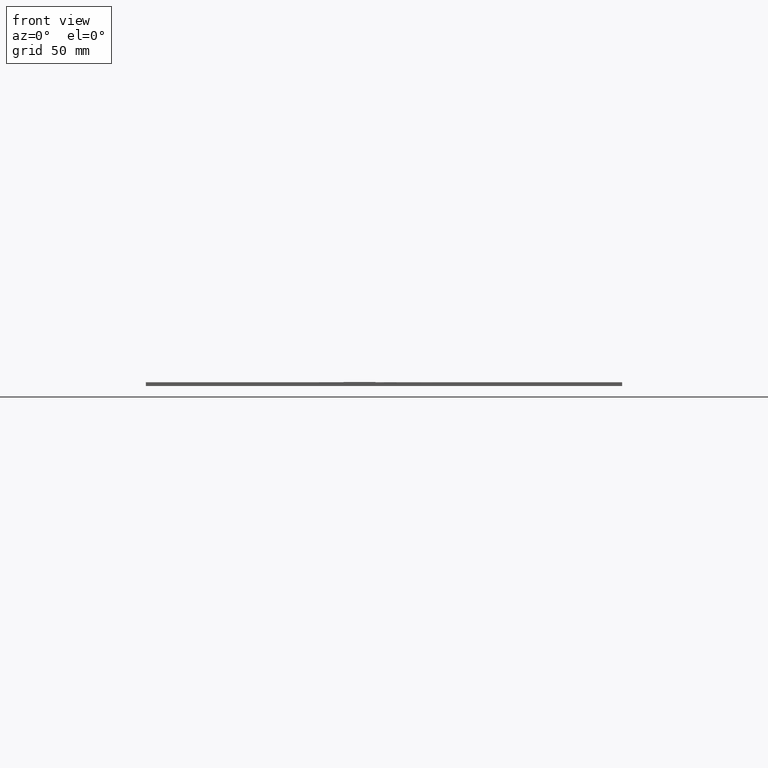
[diagram: clean part render]
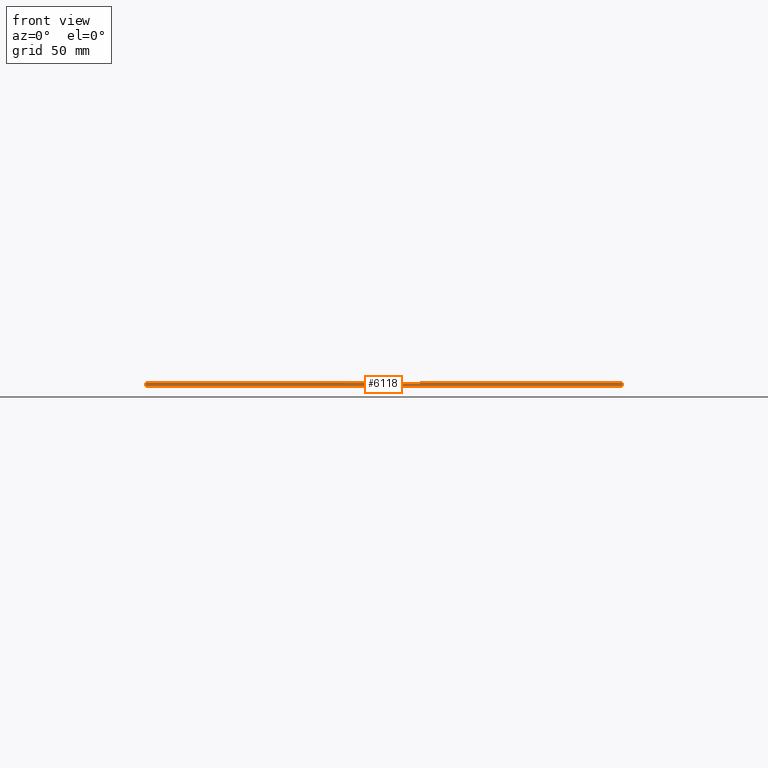
[diagram: same view with one face highlighted and labeled with its STEP entity id]
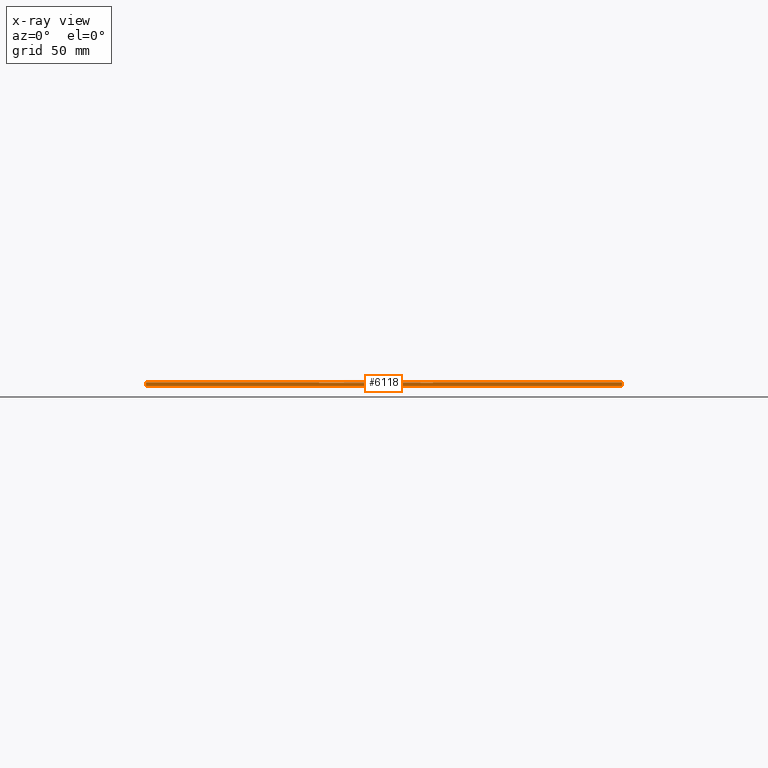
[diagram: x-ray of the same camera — body ghosted, the highlighted face saturated]
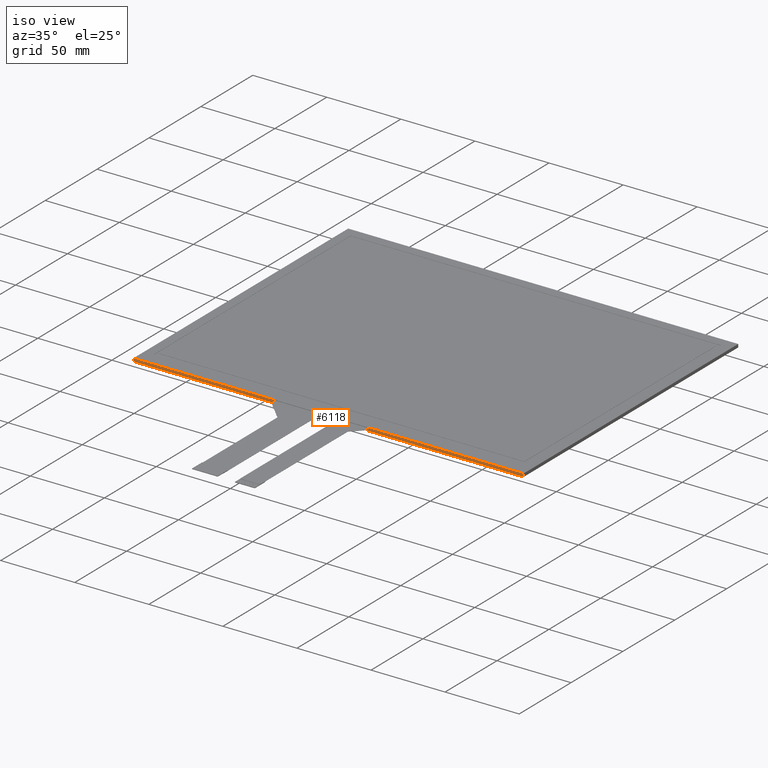
[diagram: same view with one face highlighted and labeled with its STEP entity id]
A machine part, front view. The second image highlights one B-rep face of the part: STEP entity #6118.
The next image is the same camera in x-ray: the body ghosted, the highlighted face saturated — about 1% of this face is hidden behind the body in this view.
A second angle (iso view) of the same face is appended — the face is thin or edge-on in the first view.
In plain terms, the highlighted planar face has unit normal (0, -1, 0).
Its self-contained STEP definition (entity closure, byte-faithful):
#69=FACE_BOUND('',#939,.T.);
#70=FACE_BOUND('',#940,.T.);
#348=PLANE('',#6456);
#642=FACE_OUTER_BOUND('',#938,.T.);
#938=EDGE_LOOP('',(#5789,#5790,#5791,#5792));
#939=EDGE_LOOP('',(#5793,#5794,#5795,#5796));
#940=EDGE_LOOP('',(#5797,#5798,#5799,#5800));
#959=LINE('',#7979,#1799);
#978=LINE('',#8030,#1818);
#1738=LINE('',#9578,#2578);
#1742=LINE('',#9585,#2582);
#1743=LINE('',#9587,#2583);
#1744=LINE('',#9590,#2584);
#1747=LINE('',#9595,#2587);
#1748=LINE('',#9597,#2588);
#1775=LINE('',#9654,#2615);
#1779=LINE('',#9661,#2619);
#1780=LINE('',#9664,#2620);
#1781=LINE('',#9665,#2621);
#1799=VECTOR('',#6495,10.);
#1818=VECTOR('',#6536,10.);
#2578=VECTOR('',#7848,10.);
#2582=VECTOR('',#7856,10.);
#2583=VECTOR('',#7859,10.);
#2584=VECTOR('',#7862,10.);
#2587=VECTOR('',#7867,10.);
#2588=VECTOR('',#7870,10.);
#2615=VECTOR('',#7917,10.);
#2619=VECTOR('',#7923,10.);
#2620=VECTOR('',#7926,10.);
#2621=VECTOR('',#7927,10.);
#2663=VERTEX_POINT('',#7976);
#2664=VERTEX_POINT('',#7978);
#2684=VERTEX_POINT('',#8027);
#2685=VERTEX_POINT('',#8029);
#3197=VERTEX_POINT('',#9577);
#3198=VERTEX_POINT('',#9583);
#3199=VERTEX_POINT('',#9589);
#3200=VERTEX_POINT('',#9593);
#3219=VERTEX_POINT('',#9651);
#3220=VERTEX_POINT('',#9653);
#3222=VERTEX_POINT('',#9659);
#3223=VERTEX_POINT('',#9663);
#3243=EDGE_CURVE('',#2664,#2663,#959,.T.);
#3268=EDGE_CURVE('',#2685,#2684,#978,.T.);
#4042=EDGE_CURVE('',#3197,#2664,#1738,.T.);
#4046=EDGE_CURVE('',#2663,#3198,#1742,.T.);
#4047=EDGE_CURVE('',#3198,#3197,#1743,.T.);
#4048=EDGE_CURVE('',#3199,#2685,#1744,.T.);
#4051=EDGE_CURVE('',#2684,#3200,#1747,.T.);
#4052=EDGE_CURVE('',#3200,#3199,#1748,.T.);
#4079=EDGE_CURVE('',#3219,#3220,#1775,.T.);
#4083=EDGE_CURVE('',#3219,#3222,#1779,.T.);
#4084=EDGE_CURVE('',#3223,#3222,#1780,.T.);
#4085=EDGE_CURVE('',#3220,#3223,#1781,.T.);
#5789=ORIENTED_EDGE('',*,*,#4079,.F.);
#5790=ORIENTED_EDGE('',*,*,#4083,.T.);
#5791=ORIENTED_EDGE('',*,*,#4084,.F.);
#5792=ORIENTED_EDGE('',*,*,#4085,.F.);
#5793=ORIENTED_EDGE('',*,*,#4046,.T.);
#5794=ORIENTED_EDGE('',*,*,#4047,.T.);
#5795=ORIENTED_EDGE('',*,*,#4042,.T.);
#5796=ORIENTED_EDGE('',*,*,#3243,.T.);
#5797=ORIENTED_EDGE('',*,*,#4051,.T.);
#5798=ORIENTED_EDGE('',*,*,#4052,.T.);
#5799=ORIENTED_EDGE('',*,*,#4048,.T.);
#5800=ORIENTED_EDGE('',*,*,#3268,.T.);
#6118=ADVANCED_FACE('',(#642,#69,#70),#348,.T.);
#6456=AXIS2_PLACEMENT_3D('',#9662,#7924,#7925);
#6495=DIRECTION('',(1.,6.74651287276966E-17,0.));
#6536=DIRECTION('',(1.,6.74651287276966E-17,0.));
#7848=DIRECTION('',(0.,0.,1.));
#7856=DIRECTION('',(0.,0.,-1.));
#7859=DIRECTION('',(-1.,-6.74651287276966E-17,0.));
#7862=DIRECTION('',(0.,0.,1.));
#7867=DIRECTION('',(0.,0.,-1.));
#7870=DIRECTION('',(-1.,-6.74651287276966E-17,0.));
#7917=DIRECTION('',(1.,6.74651287276966E-17,0.));
#7923=DIRECTION('',(0.,0.,-1.));
#7924=DIRECTION('center_axis',(6.74651287276966E-17,-1.,0.));
#7925=DIRECTION('ref_axis',(-1.,-6.74651287276966E-17,0.));
#7926=DIRECTION('',(-1.,-6.74651287276966E-17,0.));
#7927=DIRECTION('',(0.,0.,-1.));
#7976=CARTESIAN_POINT('',(27.,-105.35,-0.2));
#7978=CARTESIAN_POINT('',(8.88178419700125E-15,-105.35,-0.2));
#7979=CARTESIAN_POINT('',(72.575,-105.35,-0.2));
#8027=CARTESIAN_POINT('',(-1.00000000000003,-105.35,-0.2));
#8029=CARTESIAN_POINT('',(-36.,-105.35,-0.2));
#8030=CARTESIAN_POINT('',(56.575,-105.35,-0.2));
#9577=CARTESIAN_POINT('',(8.88178419700125E-15,-105.35,-0.3));
#9578=CARTESIAN_POINT('',(1.77635683940025E-14,-105.35,-0.1));
#9583=CARTESIAN_POINT('',(27.,-105.35,-0.3));
#9585=CARTESIAN_POINT('',(27.,-105.35,-0.1));
#9587=CARTESIAN_POINT('',(72.575,-105.35,-0.3));
#9589=CARTESIAN_POINT('',(-36.,-105.35,-0.3));
#9590=CARTESIAN_POINT('',(-36.,-105.35,-0.1));
#9593=CARTESIAN_POINT('',(-1.00000000000003,-105.35,-0.3));
#9595=CARTESIAN_POINT('',(-1.00000000000003,-105.35,-0.1));
#9597=CARTESIAN_POINT('',(56.575,-105.35,-0.3));
#9651=CARTESIAN_POINT('',(-131.65,-105.35,0.));
#9653=CARTESIAN_POINT('',(131.65,-105.35,0.));
#9654=CARTESIAN_POINT('',(-131.65,-105.35,0.));
#9659=CARTESIAN_POINT('',(-131.65,-105.35,-2.1));
#9661=CARTESIAN_POINT('',(-131.65,-105.35,0.));
#9662=CARTESIAN_POINT('Origin',(131.65,-105.35,0.));
#9663=CARTESIAN_POINT('',(131.65,-105.35,-2.1));
#9664=CARTESIAN_POINT('',(-131.65,-105.35,-2.1));
#9665=CARTESIAN_POINT('',(131.65,-105.35,0.));